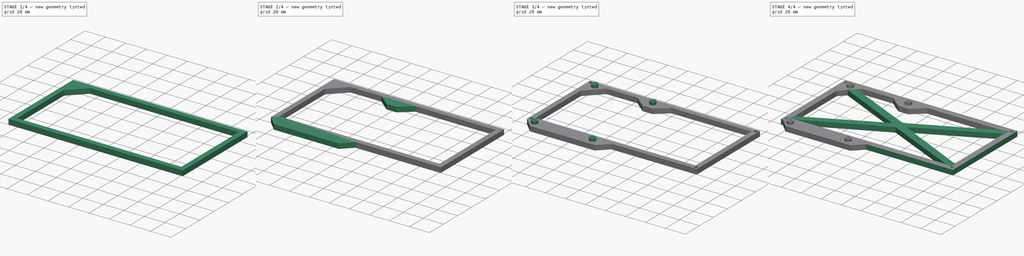
[diagram: build sequence overview — one tinted view per stage of 4, left to right]
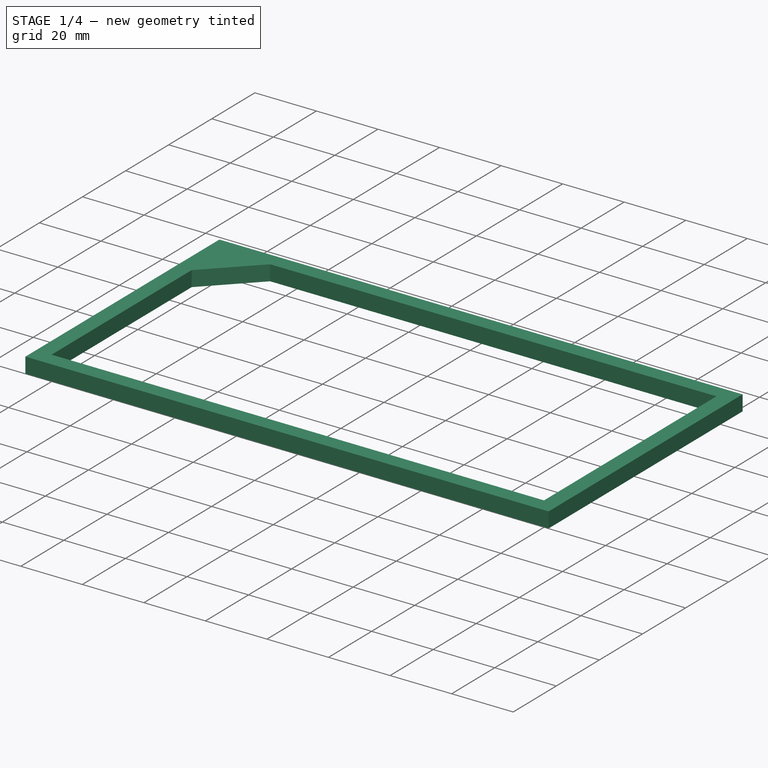
[diagram: stage 1 of 4 — iso view after this stage's code; geometry added in this stage tinted green]
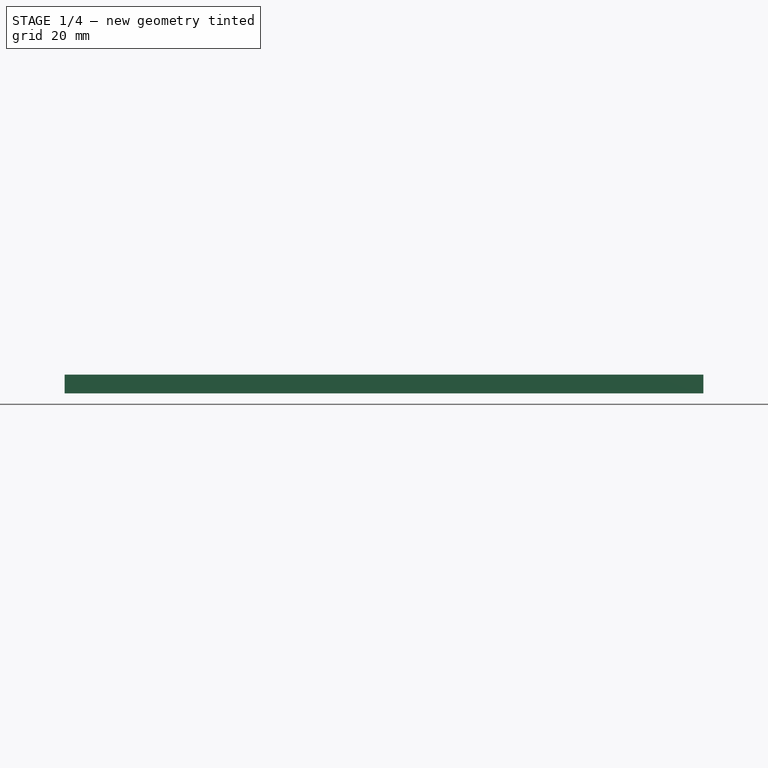
[diagram: stage 1 of 4 — front view after this stage's code; geometry added in this stage tinted green]
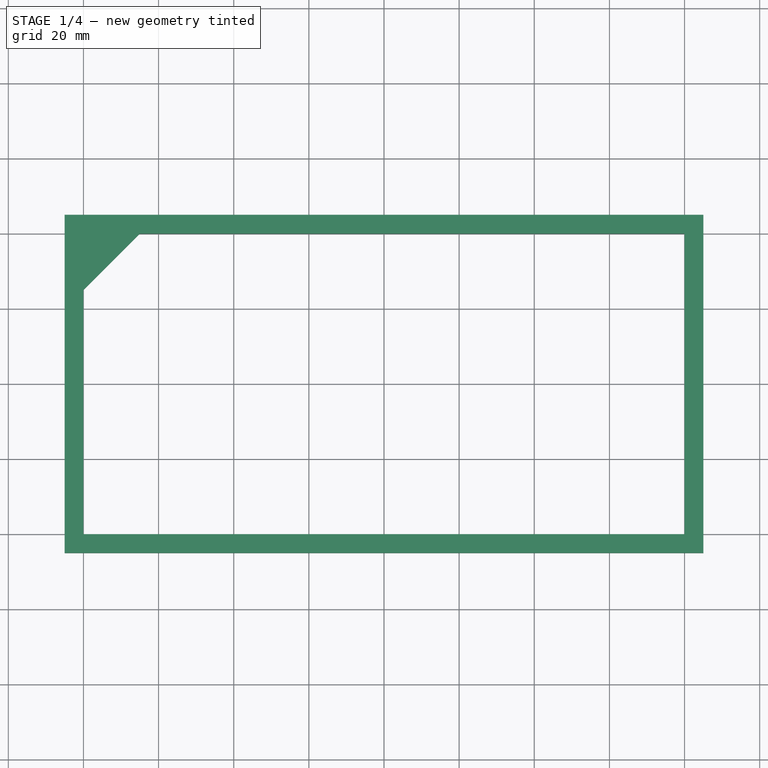
[diagram: stage 1 of 4 — top view after this stage's code; geometry added in this stage tinted green]
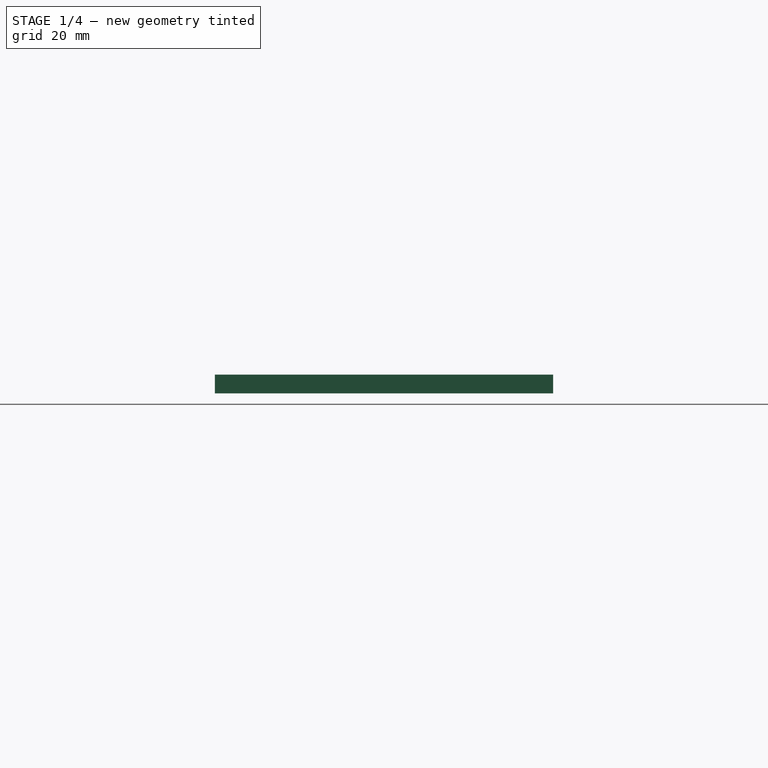
[diagram: stage 1 of 4 — right view after this stage's code; geometry added in this stage tinted green]
FCSTD DOCUMENT  (FreeCAD 0.18R4 (GitTag))
Label: Box_frame_top
License: All rights reserved
LicenseURL: http://en.wikipedia.org/wiki/All_rights_reserved
objects: Sketcher::SketchObject×9, PartDesign::Pad×7, PartDesign::Pocket×2, PartDesign::Body×1
note: 28 computed .brp shape members not serialized (recipe doc carries the construction recipe); baked Part::Feature solids carry a one-line shape summary decoded from their .brp

FEATURE [Sketcher::SketchObject] Sketch
  MapMode = 5
  Support = -> [XY_Plane]
  sketch-geometry (8):
    g0: LineSegment StartX=-80 StartY=40 StartZ=0 EndX=80 EndY=40 EndZ=0
    g1: LineSegment StartX=80 StartY=40 StartZ=0 EndX=80 EndY=-40 EndZ=0
    g2: LineSegment StartX=80 StartY=-40 StartZ=0 EndX=-80 EndY=-40 EndZ=0
    g3: LineSegment StartX=-80 StartY=-40 StartZ=0 EndX=-80 EndY=40 EndZ=0
    g4: LineSegment StartX=-85 StartY=45 StartZ=0 EndX=85 EndY=45 EndZ=0
    g5: LineSegment StartX=85 StartY=45 StartZ=0 EndX=85 EndY=-45 EndZ=0
    g6: LineSegment StartX=85 StartY=-45 StartZ=0 EndX=-85 EndY=-45 EndZ=0
    g7: LineSegment StartX=-85 StartY=-45 StartZ=0 EndX=-85 EndY=45 EndZ=0
  constraints (24):
    c: Coincident(g0,g1)
    c: Coincident(g1,g2)
    c: Coincident(g2,g3)
    c: Coincident(g3,g0)
    c: Horizontal(g0)
    c: Horizontal(g2)
    c: Vertical(g1)
    c: Vertical(g3)
    c: DistanceX(g0,g-1) = 80
    c: DistanceX(g-1,g0) = 80
    c: DistanceY(g1,g-1) = 40
    c: DistanceY(g-1,g0) = 40
    c: Coincident(g4,g5)
    c: Coincident(g5,g6)
    c: Coincident(g6,g7)
    c: Coincident(g7,g4)
    c: Horizontal(g4)
    c: Horizontal(g6)
    c: Vertical(g5)
    c: Vertical(g7)
    c: DistanceX(g0,g4) = 5
    c: DistanceX(g6,g2) = 5
    c: DistanceY(g0,g4) = 5
    c: DistanceY(g5,g1) = 5
FEATURE [PartDesign::Pad] Pad
  Length = 5
  Length2 = 100
  Profile = -> Sketch
  Type = 0
FEATURE [Sketcher::SketchObject] Sketch001
  MapMode = 5
  Support = -> [XY_Plane]
  sketch-geometry (3):
    g0: LineSegment StartX=-80 StartY=40 StartZ=0 EndX=-80 EndY=25 EndZ=0
    g1: LineSegment StartX=-80 StartY=25 StartZ=0 EndX=-65 EndY=40 EndZ=0
    g2: LineSegment StartX=-65 StartY=40 StartZ=0 EndX=-80 EndY=40 EndZ=0
  constraints (9):
    c: Coincident(g0,g1)
    c: Coincident(g1,g2)
    c: Coincident(g2,g0)
    c: Vertical(g0)
    c: Horizontal(g2)
    c: DistanceX(g0,g-1) = 80
    c: DistanceX(g0,g1) = 15
    c: DistanceY(g0,g0) = 15
    c: DistanceY(g-1,g0) = 40
FEATURE [PartDesign::Pad] Pad001
  BaseFeature = -> Pad
  Length = 5
  Length2 = 100
  Profile = -> Sketch001
  Refine = true
  Type = 0
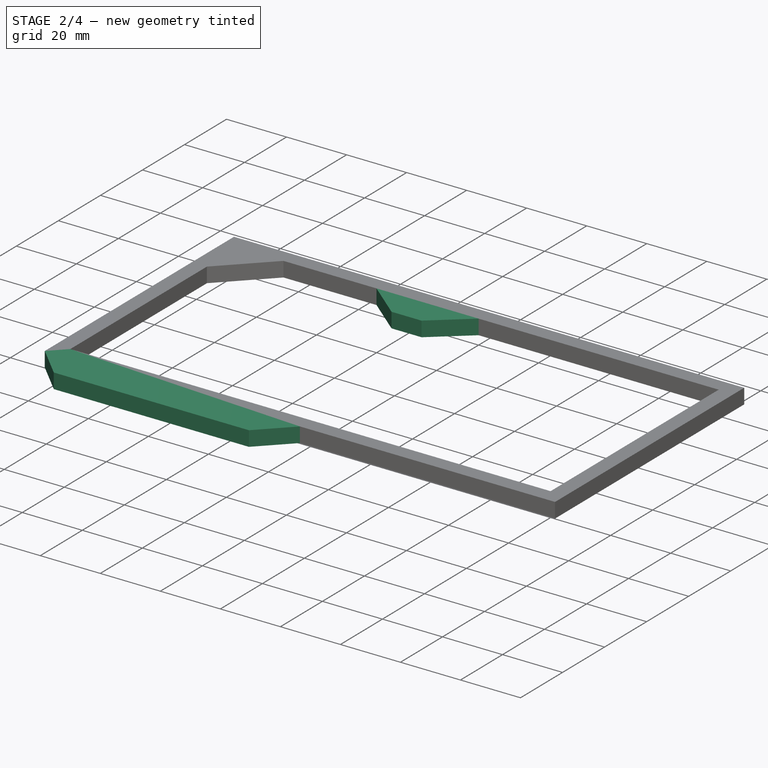
[diagram: stage 2 of 4 — iso view after this stage's code; geometry added in this stage tinted green]
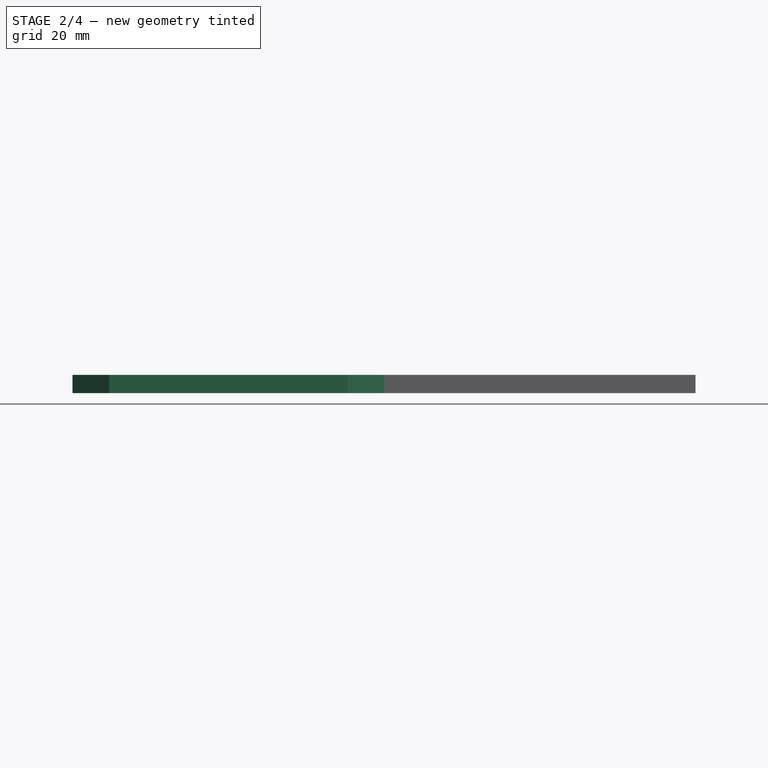
[diagram: stage 2 of 4 — front view after this stage's code; geometry added in this stage tinted green]
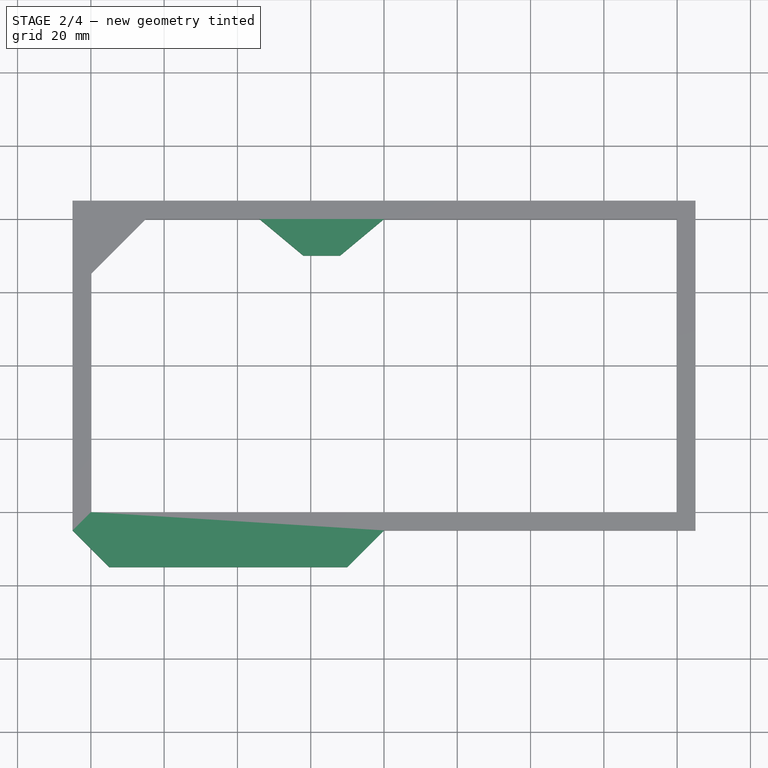
[diagram: stage 2 of 4 — top view after this stage's code; geometry added in this stage tinted green]
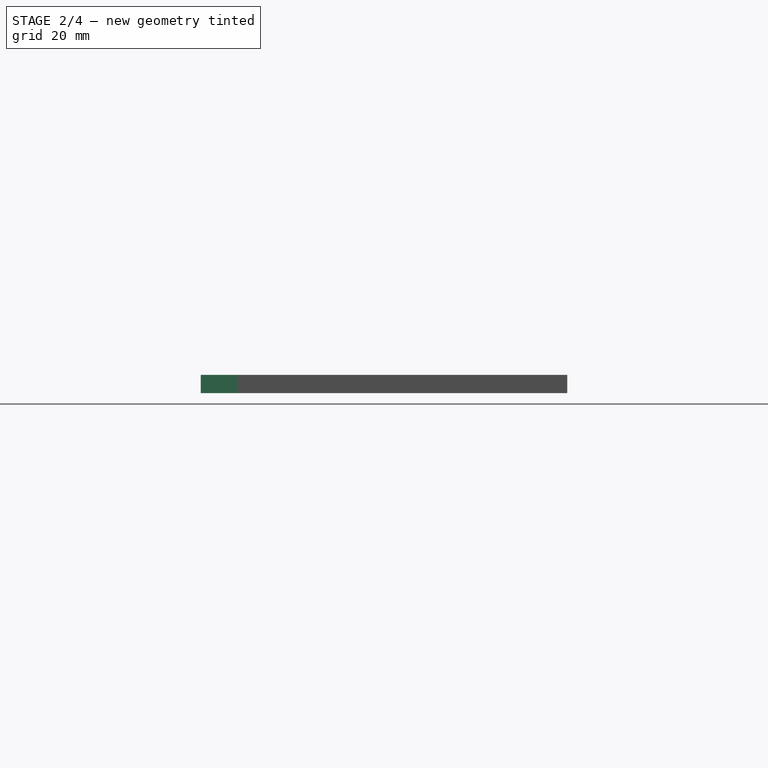
[diagram: stage 2 of 4 — right view after this stage's code; geometry added in this stage tinted green]
FEATURE [Sketcher::SketchObject] Sketch002
  MapMode = 5
  Support = -> [XY_Plane]
  sketch-geometry (4):
    g0: LineSegment StartX=-85 StartY=-45 StartZ=0 EndX=-75 EndY=-55 EndZ=0
    g1: LineSegment StartX=-75 StartY=-55 StartZ=0 EndX=-10 EndY=-55 EndZ=0
    g2: LineSegment StartX=-10 StartY=-55 StartZ=0 EndX=-3.6e-15 EndY=-45 EndZ=0
    g3: LineSegment StartX=-3.6e-15 StartY=-45 StartZ=0 EndX=-85 EndY=-45 EndZ=0
  constraints (12):
    c: Coincident(g0,g1)
    c: Coincident(g1,g2)
    c: Coincident(g2,g3)
    c: Coincident(g3,g0)
    c: Horizontal(g3)
    c: Horizontal(g1)
    c: DistanceX(g0,g-1) = 85
    c: DistanceY(g0,g-1) = 45
    c: DistanceY(g1,g2) = 10
    c: DistanceX(g0,g1) = 65
    c: DistanceX(g0,g2) = 85
    c: DistanceX(g0,g0) = 10
FEATURE [PartDesign::Pad] Pad002
  BaseFeature = -> Pad001
  Length = 5
  Length2 = 100
  Profile = -> Sketch002
  Refine = true
  Type = 0
FEATURE [Sketcher::SketchObject] Sketch003
  MapMode = 5
  Support = -> [XY_Plane]
  sketch-geometry (4):
    g0: LineSegment StartX=0 StartY=40 StartZ=0 EndX=-12 EndY=30 EndZ=0
    g1: LineSegment StartX=-12 StartY=30 StartZ=0 EndX=-22 EndY=30 EndZ=0
    g2: LineSegment StartX=-22 StartY=30 StartZ=0 EndX=-34 EndY=40 EndZ=0
    g3: LineSegment StartX=-34 StartY=40 StartZ=0 EndX=0 EndY=40 EndZ=0
  constraints (12):
    c: Coincident(g0,g1)
    c: Coincident(g1,g2)
    c: Coincident(g2,g3)
    c: Coincident(g3,g0)
    c: DistanceY(g-1,g0) = 40
    c: Horizontal(g3)
    c: Horizontal(g1)
    c: DistanceY(g0,g0) = 10
    c: DistanceX(g1,g0) = 10
    c: DistanceX(g2,g1) = 12
    c: DistanceX(g0,g0) = 12
    c: DistanceX(g-1,g0) = 0
FEATURE [PartDesign::Pad] Pad003
  BaseFeature = -> Pad002
  Length = 5
  Length2 = 100
  Profile = -> Sketch003
  Refine = true
  Type = 0
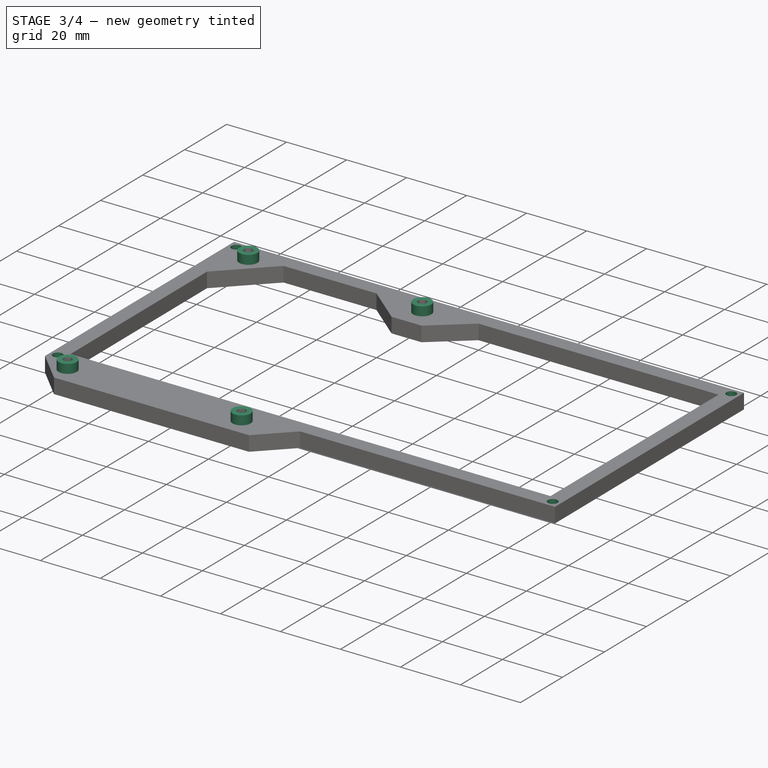
[diagram: stage 3 of 4 — iso view after this stage's code; geometry added in this stage tinted green]
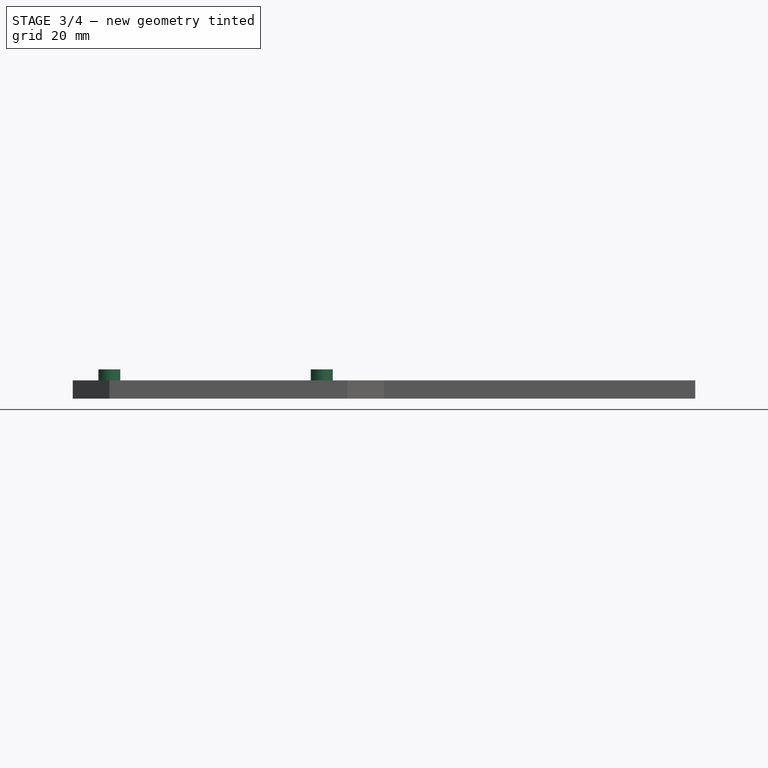
[diagram: stage 3 of 4 — front view after this stage's code; geometry added in this stage tinted green]
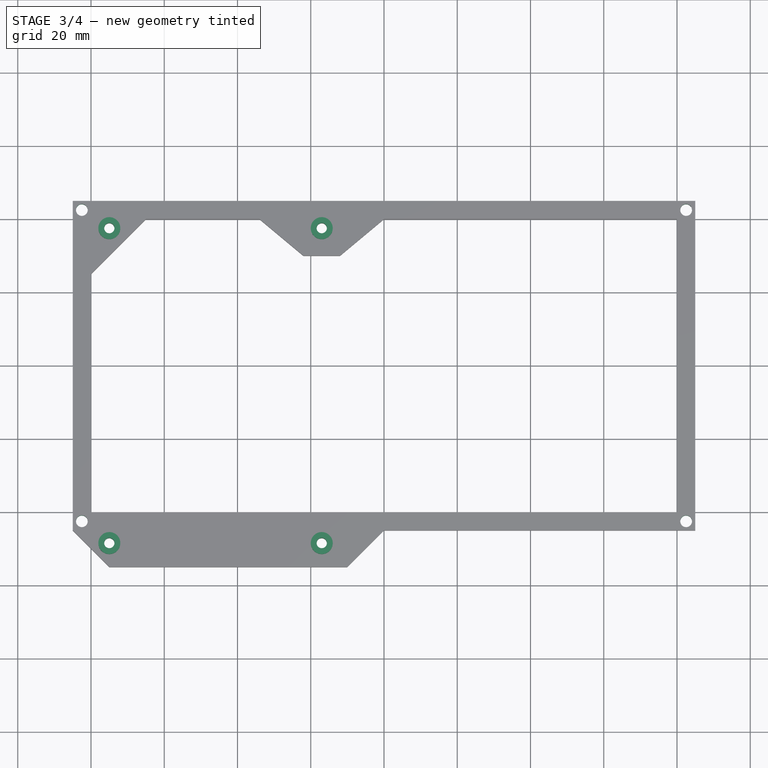
[diagram: stage 3 of 4 — top view after this stage's code; geometry added in this stage tinted green]
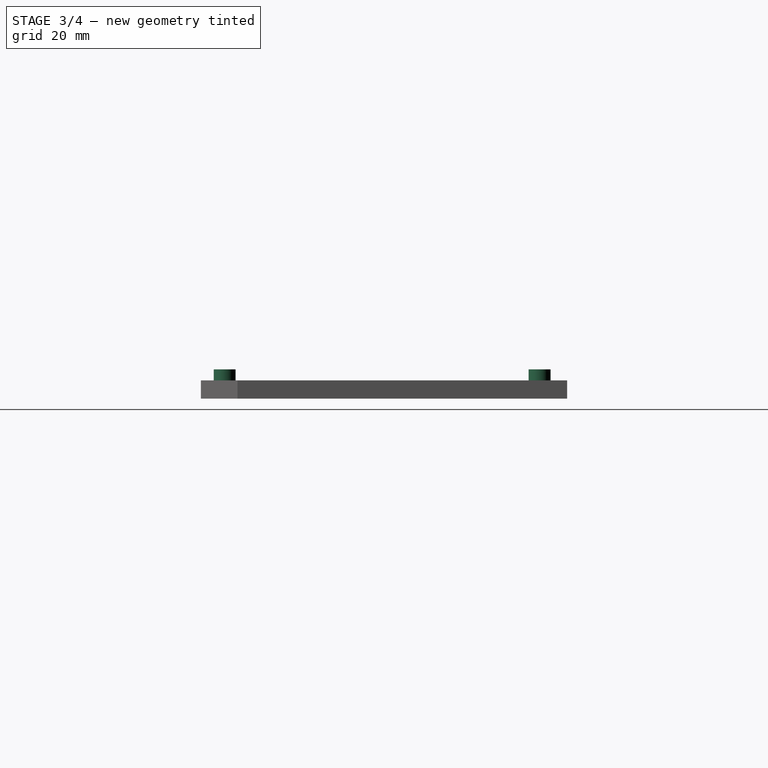
[diagram: stage 3 of 4 — right view after this stage's code; geometry added in this stage tinted green]
FEATURE [Sketcher::SketchObject] Sketch004
  MapMode = 5
  Placement = pos=(0,0,5) rot=(0,0,1;0rad)
  Support = -> [Pad003]
  sketch-geometry (4):
    g0: Circle CenterX=-82.5 CenterY=42.5 CenterZ=0 NormalX=0 NormalY=0 NormalZ=1 AngleXU=0 Radius=1.6
    g1: Circle CenterX=-82.5 CenterY=-42.5 CenterZ=0 NormalX=0 NormalY=0 NormalZ=1 AngleXU=0 Radius=1.6
    g2: Circle CenterX=82.5 CenterY=-42.5 CenterZ=0 NormalX=0 NormalY=0 NormalZ=1 AngleXU=0 Radius=1.6
    g3: Circle CenterX=82.5 CenterY=42.5 CenterZ=0 NormalX=0 NormalY=0 NormalZ=1 AngleXU=0 Radius=1.6
  constraints (12):
    c: DistanceX(g-1,g3) = 82.5
    c: DistanceX(g-1,g2) = 82.5
    c: DistanceY(g-1,g3) = 42.5
    c: DistanceY(g2,g-1) = 42.5
    c: DistanceY(g1,g-1) = 42.5
    c: DistanceY(g-1,g0) = 42.5
    c: DistanceX(g0,g-1) = 82.5
    c: DistanceX(g1,g-1) = 82.5
    c: Radius(g0) = 1.6
    c: Radius(g1) = 1.6
    c: Radius(g3) = 1.6
    c: Radius(g2) = 1.6
FEATURE [Sketcher::SketchObject] Sketch005
  MapMode = 5
  Placement = pos=(0,0,5) rot=(0,0,1;0rad)
  Support = -> [Pad003]
  sketch-geometry (4):
    g0: Circle CenterX=-75 CenterY=37.5 CenterZ=0 NormalX=0 NormalY=0 NormalZ=1 AngleXU=0 Radius=3
    g1: Circle CenterX=-17 CenterY=37.5 CenterZ=0 NormalX=0 NormalY=0 NormalZ=1 AngleXU=0 Radius=3
    g2: Circle CenterX=-75 CenterY=-48.5 CenterZ=0 NormalX=0 NormalY=0 NormalZ=1 AngleXU=0 Radius=3
    g3: Circle CenterX=-17 CenterY=-48.5 CenterZ=0 NormalX=0 NormalY=0 NormalZ=1 AngleXU=0 Radius=3
  constraints (12):
    c: Radius(g0) = 3
    c: DistanceX(g0,g1) = 58
    c: Radius(g1) = 3
    c: DistanceY(g1,g0) = 0
    c: DistanceY(g3,g1) = 86
    c: DistanceY(g2,g3) = 0
    c: DistanceX(g2,g3) = 58
    c: DistanceX(g0,g2) = 0
    c: Radius(g2) = 3
    c: Radius(g3) = 3
    c: DistanceX(g0,g-1) = 75
    c: DistanceY(g-1,g0) = 37.5
FEATURE [PartDesign::Pocket] Pocket
  BaseFeature = -> Pad003
  Length = 5
  Length2 = 100
  Profile = -> Sketch004
  Type = 0
FEATURE [PartDesign::Pad] Pad004
  BaseFeature = -> Pocket
  Length = 3
  Length2 = 100
  Profile = -> Sketch005
  Type = 0
FEATURE [Sketcher::SketchObject] Sketch006
  MapMode = 5
  Placement = pos=(0,0,8) rot=(0,0,1;0rad)
  Support = -> [Pad004]
  sketch-geometry (4):
    g0: Circle CenterX=-75 CenterY=37.5 CenterZ=0 NormalX=0 NormalY=0 NormalZ=1 AngleXU=0 Radius=1.4
    g1: Circle CenterX=-17 CenterY=37.5 CenterZ=0 NormalX=0 NormalY=0 NormalZ=1 AngleXU=0 Radius=1.4
    g2: Circle CenterX=-75 CenterY=-48.5 CenterZ=0 NormalX=0 NormalY=0 NormalZ=1 AngleXU=0 Radius=1.4
    g3: Circle CenterX=-17 CenterY=-48.5 CenterZ=0 NormalX=0 NormalY=0 NormalZ=1 AngleXU=0 Radius=1.4
  constraints (12):
    c: Radius(g0) = 1.4
    c: DistanceX(g0,g1) = 58
    c: Radius(g1) = 1.4
    c: DistanceY(g1,g0) = 0
    c: DistanceY(g3,g1) = 86
    c: DistanceY(g2,g3) = 0
    c: DistanceX(g2,g3) = 58
    c: DistanceX(g0,g2) = 0
    c: Radius(g2) = 1.4
    c: Radius(g3) = 1.4
    c: DistanceX(g0,g-1) = 75
    c: DistanceY(g-1,g0) = 37.5
FEATURE [PartDesign::Pocket] Pocket001
  BaseFeature = -> Pad004
  Length = 10
  Length2 = 100
  Profile = -> Sketch006
  Type = 0
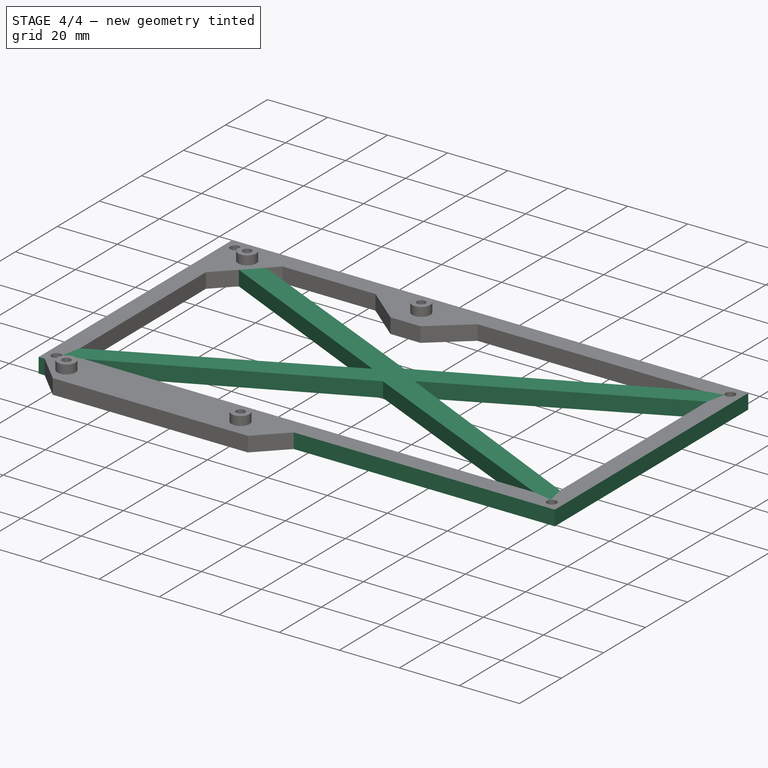
[diagram: stage 4 of 4 — iso view after this stage's code; geometry added in this stage tinted green]
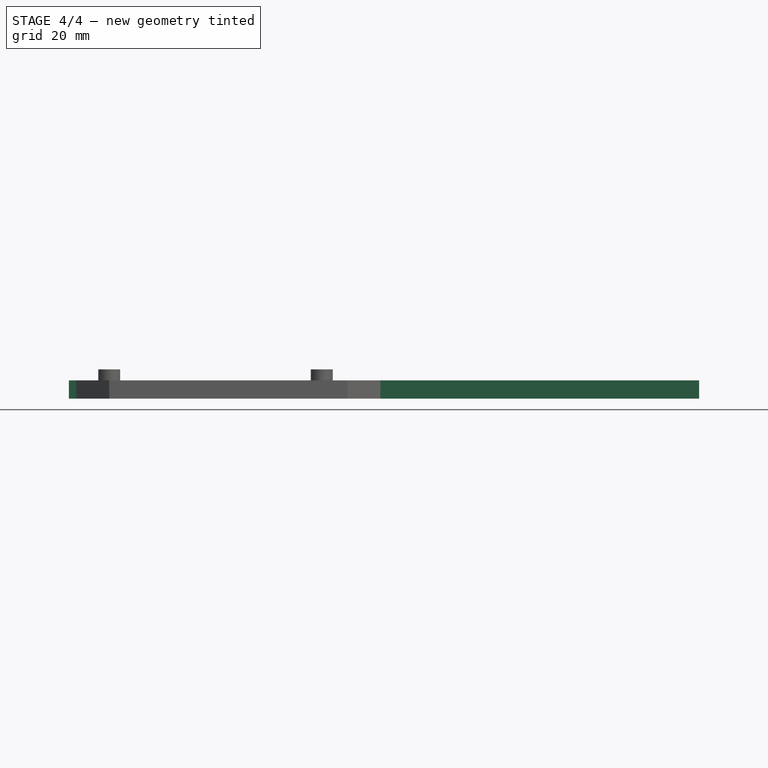
[diagram: stage 4 of 4 — front view after this stage's code; geometry added in this stage tinted green]
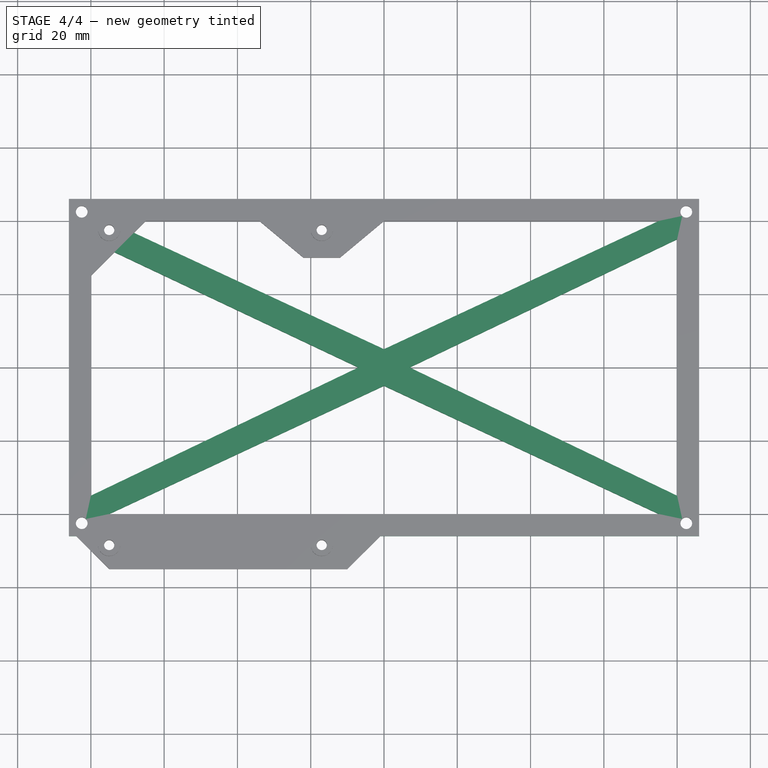
[diagram: stage 4 of 4 — top view after this stage's code; geometry added in this stage tinted green]
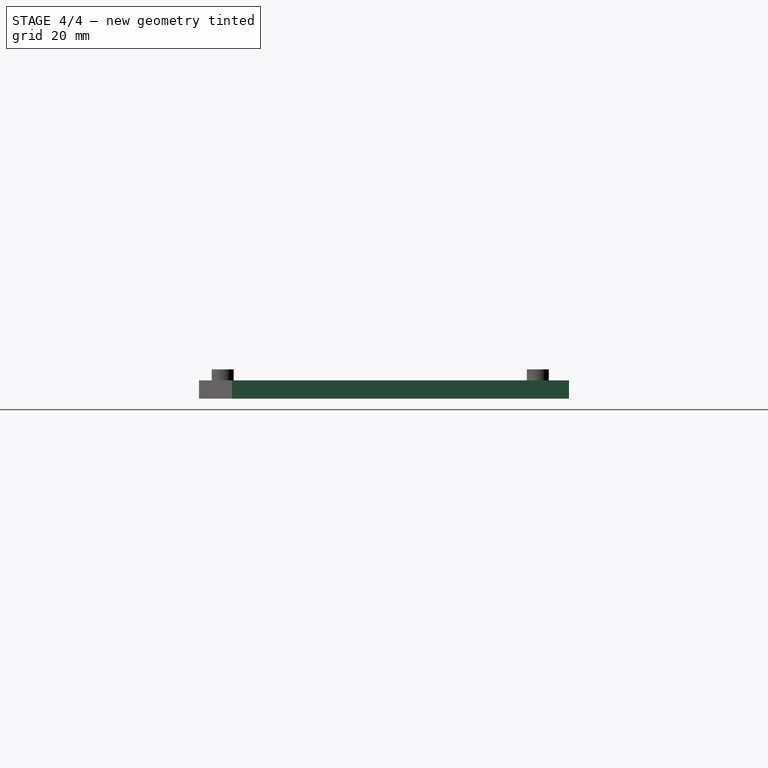
[diagram: stage 4 of 4 — right view after this stage's code; geometry added in this stage tinted green]
FEATURE [Sketcher::SketchObject] Sketch031
  MapMode = 5
  Support = -> [XY_Plane]
  sketch-geometry (18):
    g0: LineSegment StartX=-71.5363 StartY=35.1524 StartZ=0 EndX=-68.8475 EndY=37.0345 EndZ=0
    g1: LineSegment StartX=-68.8475 StartY=37.0345 StartZ=0 EndX=0 EndY=5 EndZ=0
    g2: LineSegment StartX=0 StartY=5 StartZ=0 EndX=75 EndY=40 EndZ=0
    g3: LineSegment StartX=75 StartY=40 StartZ=0 EndX=80 EndY=40 EndZ=0
    g4: LineSegment StartX=80 StartY=40 StartZ=0 EndX=80 EndY=35 EndZ=0
    g5: LineSegment StartX=80 StartY=35 StartZ=0 EndX=7 EndY=0 EndZ=0
    g6: LineSegment StartX=7 StartY=0 StartZ=0 EndX=80 EndY=-35 EndZ=0
    g7: LineSegment StartX=80 StartY=-35 StartZ=0 EndX=80 EndY=-40 EndZ=0
    g8: LineSegment StartX=80 StartY=-40 StartZ=0 EndX=75 EndY=-40 EndZ=0
    g9: LineSegment StartX=75 StartY=-40 StartZ=0 EndX=0 EndY=-5 EndZ=0
    g10: LineSegment StartX=0 StartY=-5 StartZ=0 EndX=-75 EndY=-40 EndZ=0
    g11: LineSegment StartX=-75 StartY=-40 StartZ=0 EndX=-80 EndY=-40 EndZ=0
    g12: LineSegment StartX=-80 StartY=-40 StartZ=0 EndX=-80 EndY=-35 EndZ=0
    g13: LineSegment StartX=-80 StartY=-35 StartZ=0 EndX=-7 EndY=0 EndZ=0
    g14: LineSegment StartX=-7 StartY=0 StartZ=0 EndX=-73.7859 EndY=31.5726 EndZ=0
    g15: LineSegment StartX=-73.7859 StartY=31.5726 StartZ=0 EndX=-71.5363 EndY=35.1524 EndZ=0
    g16: GeomPoint X=-73.3647 Y=31.7107 Z=0
    g17: GeomPoint X=-68.1484 Y=36.7119 Z=0
  constraints (42):
    c: Coincident(g0,g1)
    c: Coincident(g1,g2)
    c: Coincident(g2,g3)
    c: Coincident(g3,g4)
    c: Coincident(g4,g5)
    c: Coincident(g5,g6)
    c: Coincident(g6,g7)
    c: Coincident(g7,g8)
    c: Coincident(g8,g9)
    c: Coincident(g9,g10)
    c: Coincident(g10,g11)
    c: Coincident(g11,g12)
    c: Coincident(g12,g13)
    c: Coincident(g13,g14)
    c: Coincident(g14,g15)
    c: Coincident(g15,g0)
    c: Horizontal(g11)
    c: Horizontal(g3)
    c: Horizontal(g8)
    c: Vertical(g12)
    c: Vertical(g7)
    c: Vertical(g4)
    c: DistanceX(g-1,g3) = 80
    c: DistanceX(g-1,g7) = 80
    c: DistanceX(g11,g-1) = 80
    c: DistanceY(g-1,g3) = 40
    c: DistanceY(g7,g-1) = 40
    c: DistanceY(g11,g-1) = 40
    c: DistanceY(g11,g12) = 5
    c: DistanceY(g9,g-1) = 5
    c: DistanceY(g-1,g1) = 5
    c: DistanceY(g4,g3) = 5
    c: DistanceY(g7,g6) = 5
    c: DistanceX(g11,g10) = 5
    c: DistanceX(g8,g7) = 5
    c: DistanceX(g2,g3) = 5
    c: DistanceX(g-1,g5) = 7
    c: DistanceX(g13,g-1) = 7
    c: PointOnObject(g1,g-2)
    c: PointOnObject(g9,g-2)
    c: PointOnObject(g13,g-1)
    c: PointOnObject(g5,g-1)
FEATURE [Sketcher::SketchObject] CopySketch032
  sketch-geometry (8):
    g0: LineSegment StartX=-85 StartY=45 StartZ=0 EndX=85 EndY=45 EndZ=0
    g1: LineSegment StartX=85 StartY=45 StartZ=0 EndX=85 EndY=-45 EndZ=0
    g2: LineSegment StartX=85 StartY=-45 StartZ=0 EndX=-85 EndY=-45 EndZ=0
    g3: LineSegment StartX=-85 StartY=-45 StartZ=0 EndX=-85 EndY=45 EndZ=0
    g4: LineSegment StartX=-86 StartY=46 StartZ=0 EndX=86 EndY=46 EndZ=0
    g5: LineSegment StartX=86 StartY=46 StartZ=0 EndX=86 EndY=-46 EndZ=0
    g6: LineSegment StartX=86 StartY=-46 StartZ=0 EndX=-86 EndY=-46 EndZ=0
    g7: LineSegment StartX=-86 StartY=-46 StartZ=0 EndX=-86 EndY=46 EndZ=0
  constraints (24):
    c: Coincident(g0,g1)
    c: Coincident(g1,g2)
    c: Coincident(g2,g3)
    c: Coincident(g3,g0)
    c: Horizontal(g0)
    c: Horizontal(g2)
    c: Vertical(g1)
    c: Vertical(g3)
    c: DistanceX(g0,g-1) = 85
    c: DistanceX(g-1,g0) = 85
    c: DistanceY(g1,g-1) = 45
    c: DistanceY(g-1,g0) = 45
    c: Coincident(g4,g5)
    c: Coincident(g5,g6)
    c: Coincident(g6,g7)
    c: Coincident(g7,g4)
    c: Horizontal(g4)
    c: Horizontal(g6)
    c: Vertical(g5)
    c: Vertical(g7)
    c: DistanceX(g0,g4) = 1
    c: DistanceX(g6,g2) = 1
    c: DistanceY(g0,g4) = 1
    c: DistanceY(g5,g1) = 1
FEATURE [PartDesign::Pad] Pad006
  BaseFeature = -> Pocket001
  Length = 5
  Length2 = 100
  Profile = -> CopySketch032
  Refine = true
  Type = 0
FEATURE [PartDesign::Pad] Pad005
  BaseFeature = -> Pad006
  Length = 5
  Length2 = 100
  Profile = -> Sketch031
  Refine = true
  Type = 0
FEATURE [PartDesign::Body] Body
  Group = -> [Sketch,Pad,Sketch001,Pad001,Sketch002,Pad002,Sketch003,Pad003,Sketch004,Pocket,Sketch005,Sketch006,Pad004,Pocket001,Sketch031,Pad006,Pad005]
  Origin = -> Origin
  Tip = -> Pad006
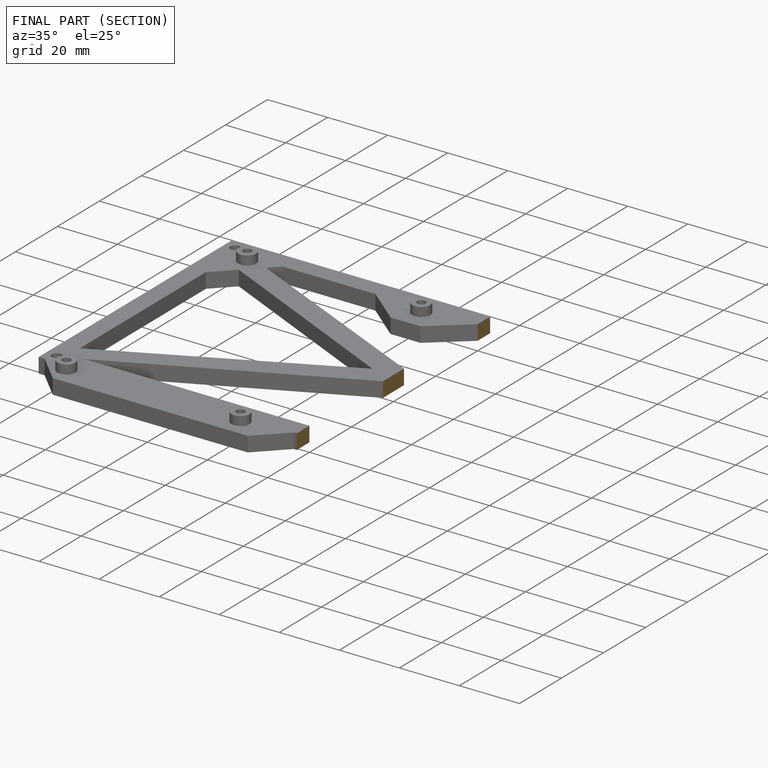
[diagram: finished part — half-section view (interior)]
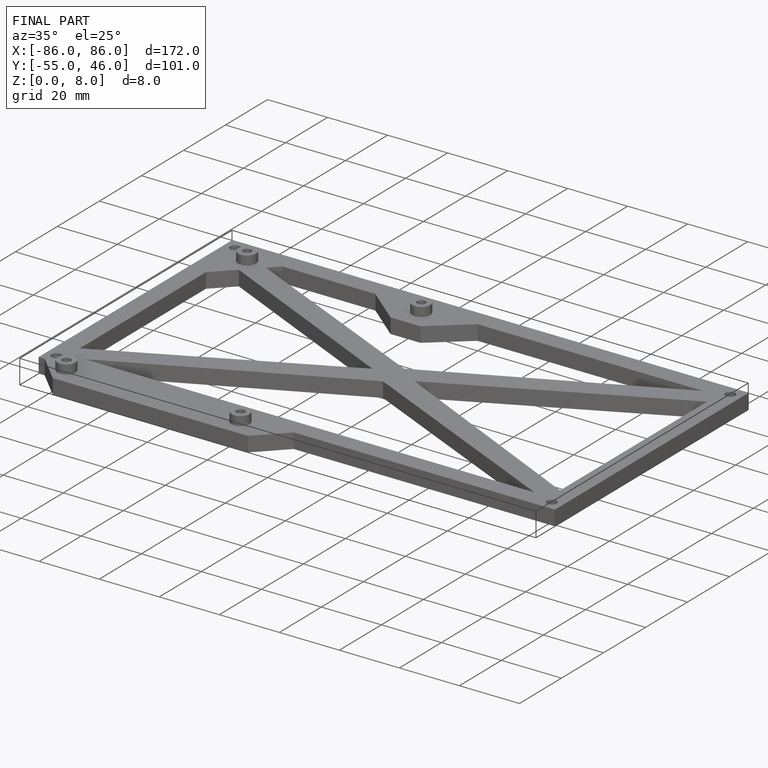
[diagram: finished part — iso view with bounding-box wireframe]
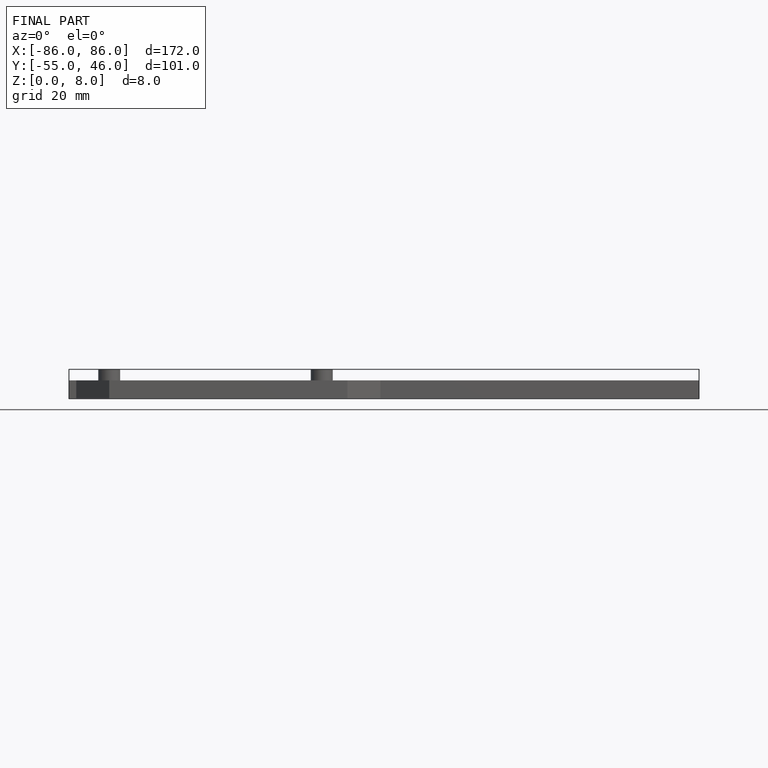
[diagram: finished part — front view with bounding-box wireframe]
